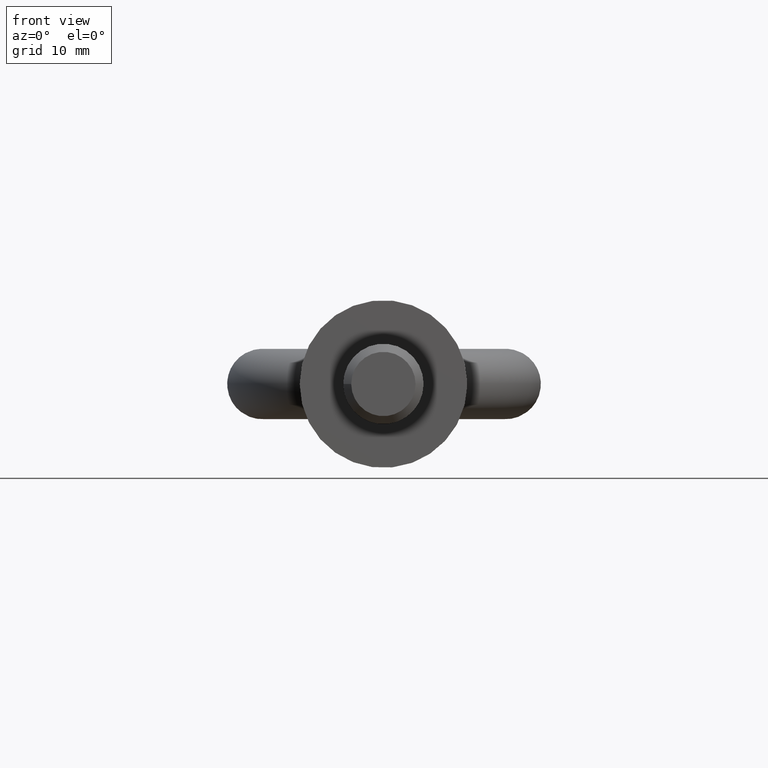
[diagram: clean part render]
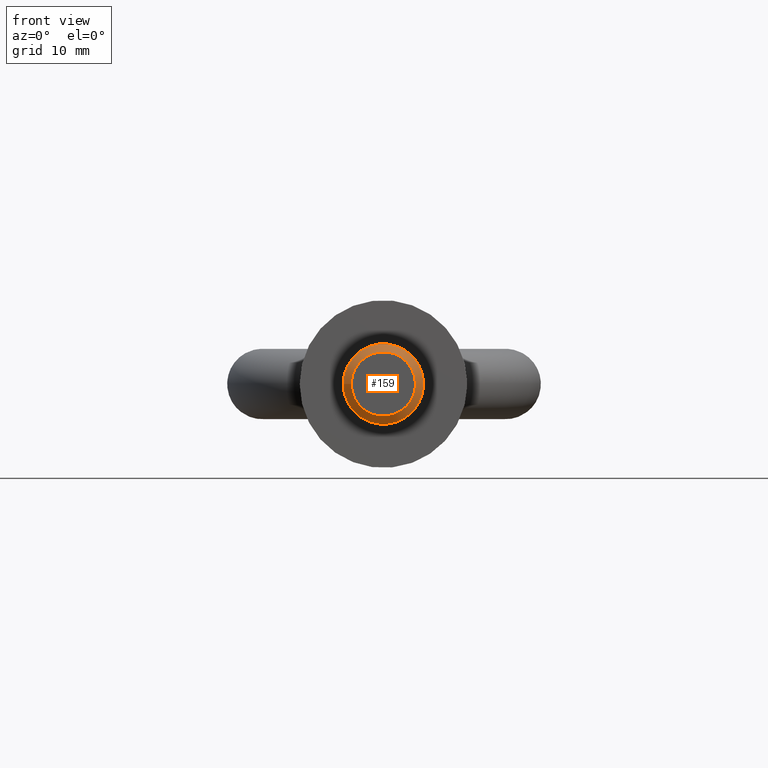
[diagram: same view with one face highlighted and labeled with its STEP entity id]
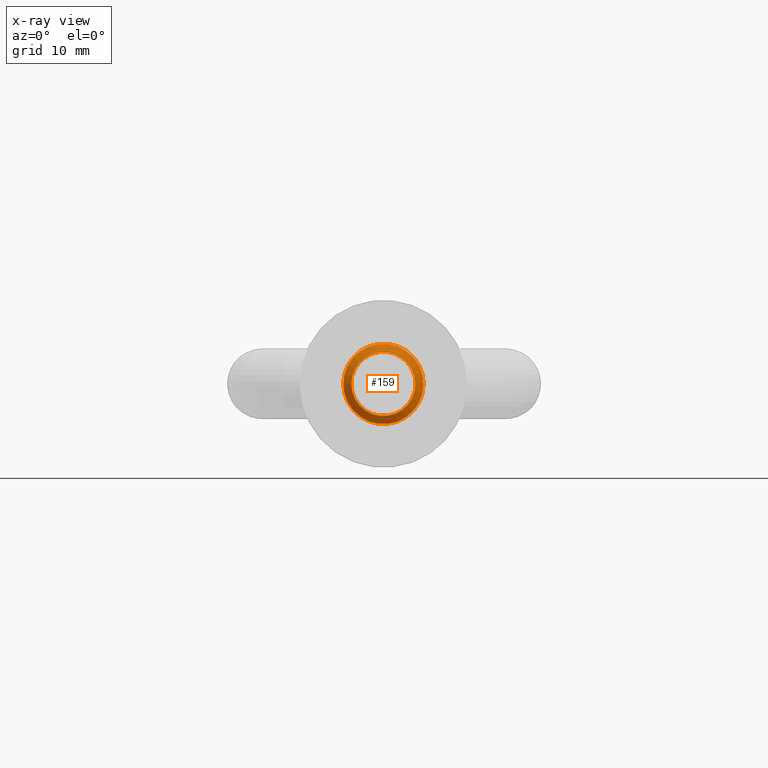
[diagram: x-ray of the same camera — body ghosted, the highlighted face saturated]
A machine part, front view. The second image highlights one B-rep face of the part: STEP entity #159.
The next image is the same camera in x-ray: the body ghosted, the highlighted face saturated — about 0% of this face is hidden behind the body in this view.
In plain terms, the highlighted conical surface has half-angle 45 deg.
Its self-contained STEP definition (entity closure, byte-faithful):
#70=CONICAL_SURFACE('',#724,6.,45.);
#86=FACE_BOUND('',#264,.T.);
#87=FACE_BOUND('',#265,.T.);
#159=ADVANCED_FACE('',(#86,#87),#70,.T.);
#264=EDGE_LOOP('',(#479));
#265=EDGE_LOOP('',(#480));
#274=CIRCLE('',#675,4.8);
#275=CIRCLE('',#677,6.);
#479=ORIENTED_EDGE('',*,*,#565,.F.);
#480=ORIENTED_EDGE('',*,*,#566,.F.);
#505=VERTEX_POINT('',#1139);
#506=VERTEX_POINT('',#1142);
#565=EDGE_CURVE('',#505,#505,#274,.T.);
#566=EDGE_CURVE('',#506,#506,#275,.T.);
#675=AXIS2_PLACEMENT_3D('',#1138,#773,#774);
#677=AXIS2_PLACEMENT_3D('',#1141,#777,#778);
#724=AXIS2_PLACEMENT_3D('',#1595,#873,#874);
#773=DIRECTION('',(9.780921661068E-19,-1.,0.));
#774=DIRECTION('',(-1.,0.,0.));
#777=DIRECTION('',(-9.78092166106799E-19,1.,0.));
#778=DIRECTION('',(-1.,0.,0.));
#873=DIRECTION('',(-9.78092166106799E-19,1.,0.));
#874=DIRECTION('',(-1.,-4.82825619556169E-17,0.));
#1138=CARTESIAN_POINT('',(5.25724539282405E-17,-36.,0.));
#1139=CARTESIAN_POINT('',(-4.8,-36.,0.));
#1141=CARTESIAN_POINT('',(5.13987433289123E-17,-34.8,0.));
#1142=CARTESIAN_POINT('',(-6.,-34.8,0.));
#1595=CARTESIAN_POINT('',(5.13987433289123E-17,-34.8,0.));